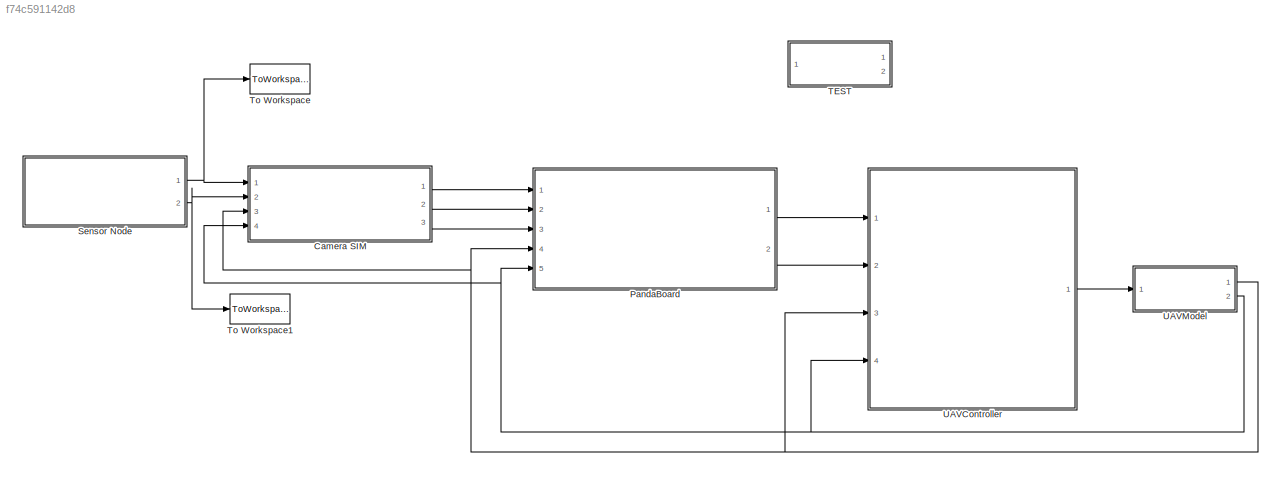
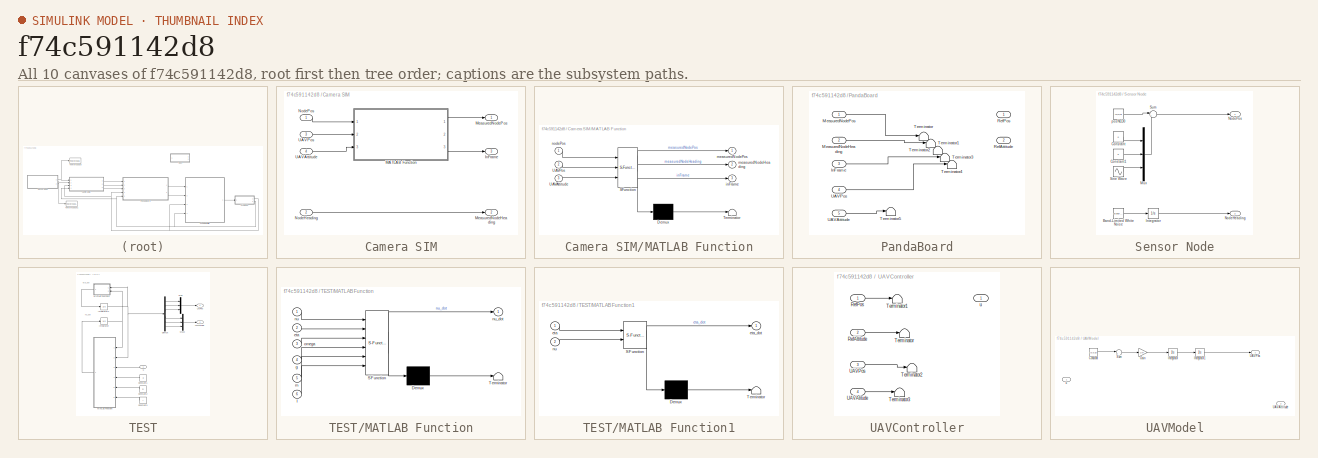
[diagram: thumbnail index - all 10 canvases of the model, root first then tree order]
MODEL slx_f74c591142d8
KIND model
BLOCK [SubSystem] Camera SIM
  FunctionWithSeparateData = off
  MaskHideContents = off
  MinAlgLoopOccurrences = off
  Opaque = off
  Ports = [4, 3]
  PropExecContextOutsideSubsystem = off
  RTWSystemCode = Auto
  RequestExecContextInheritance = off
BLOCK [Outport] Camera SIM/InFrame
  IconDisplay = Port number
  Port = 3
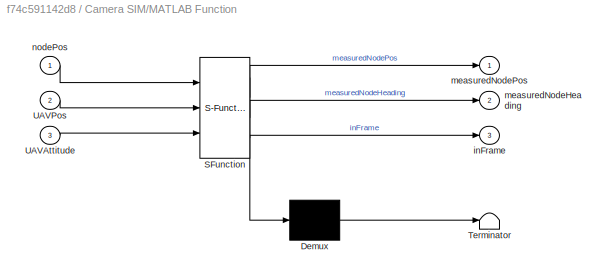
BLOCK [SubSystem] Camera SIM/MATLAB Function
  ErrorFcn = Stateflow.Translate.translate
  FunctionWithSeparateData = off
  MaskHideContents = off
  MinAlgLoopOccurrences = off
  Opaque = off
  PermitHierarchicalResolution = ExplicitOnly
  Ports = [3, 3]
  PropExecContextOutsideSubsystem = off
  RTWSystemCode = Auto
  RequestExecContextInheritance = off
  SFBlockType = MATLAB Function
  TreatAsAtomicUnit = on
BLOCK [Demux] Camera SIM/MATLAB Function/ Demux 
  Outputs = 1
  Ports = [1, 1]
BLOCK [S-Function] Camera SIM/MATLAB Function/ SFunction 
  EnableBusSupport = on
  FunctionName = sf_sfun
  PortCounts = [3 4]
  Ports = [3, 4]
  Tag = Stateflow S-Function fullSys 1
BLOCK [Terminator] Camera SIM/MATLAB Function/ Terminator 
BLOCK [Inport] Camera SIM/MATLAB Function/UAVAttitude
  IconDisplay = Port number
  Port = 3
BLOCK [Inport] Camera SIM/MATLAB Function/UAVPos
  IconDisplay = Port number
  Port = 2
BLOCK [Outport] Camera SIM/MATLAB Function/inFrame
  IconDisplay = Port number
  Port = 3
BLOCK [Outport] Camera SIM/MATLAB Function/measuredNodeHeading
  IconDisplay = Port number
  Port = 2
BLOCK [Outport] Camera SIM/MATLAB Function/measuredNodePos
  IconDisplay = Port number
BLOCK [Inport] Camera SIM/MATLAB Function/nodePos
  IconDisplay = Port number
BLOCK [Outport] Camera SIM/MeasuredNodeHeading
  IconDisplay = Port number
  Port = 2
BLOCK [Outport] Camera SIM/MeasuredNodePos
  IconDisplay = Port number
BLOCK [Inport] Camera SIM/NodeHeading
  IconDisplay = Port number
  Port = 2
BLOCK [Inport] Camera SIM/NodePos
  IconDisplay = Port number
BLOCK [Inport] Camera SIM/UAVAttitude
  IconDisplay = Port number
  Port = 4
BLOCK [Inport] Camera SIM/UAVPos
  IconDisplay = Port number
  Port = 3
BLOCK [SubSystem] PandaBoard
  FunctionWithSeparateData = off
  MaskHideContents = off
  MinAlgLoopOccurrences = off
  Opaque = off
  Ports = [5, 2]
  PropExecContextOutsideSubsystem = off
  RTWSystemCode = Auto
  RequestExecContextInheritance = off
BLOCK [Inport] PandaBoard/InFrame
  IconDisplay = Port number
  Port = 3
BLOCK [Inport] PandaBoard/MeasuredNodeHeading
  IconDisplay = Port number
  Port = 2
BLOCK [Inport] PandaBoard/MeasuredNodePos
  IconDisplay = Port number
BLOCK [Outport] PandaBoard/RefAttitude
  IconDisplay = Port number
  Port = 2
BLOCK [Outport] PandaBoard/RefPos
  IconDisplay = Port number
BLOCK [Terminator] PandaBoard/Terminator
BLOCK [Terminator] PandaBoard/Terminator1
BLOCK [Terminator] PandaBoard/Terminator2
BLOCK [Terminator] PandaBoard/Terminator3
BLOCK [Terminator] PandaBoard/Terminator4
BLOCK [Terminator] PandaBoard/Terminator5
BLOCK [Inport] PandaBoard/UAVAttitude
  IconDisplay = Port number
  Port = 5
BLOCK [Inport] PandaBoard/UAVPos
  IconDisplay = Port number
  Port = 4
BLOCK [SubSystem] Sensor Node
  FunctionWithSeparateData = off
  MaskHideContents = off
  MinAlgLoopOccurrences = off
  Opaque = off
  Ports = [0, 2]
  PropExecContextOutsideSubsystem = off
  RTWSystemCode = Auto
  RequestExecContextInheritance = off
BLOCK [Reference] Sensor Node/Band-Limited White Noise  REF=simulink/Sources/Band-Limited
White Noise
  Cov = [0.1]
  Ports = [0, 1]
  SourceBlock = simulink/Sources/Band-Limited\nWhite Noise
  SourceType = Band-Limited White Noise.
  Ts = 0.1
  VectorParams1D = on
  seed = [23341]
BLOCK [Constant] Sensor Node/Constant
  Value = 0
BLOCK [Constant] Sensor Node/Constant1
  Value = 0
BLOCK [Integrator] Sensor Node/Integrator
  Ports = [1, 1]
BLOCK [Mux] Sensor Node/Mux
  DisplayOption = bar
  Inputs = 3
  Ports = [3, 1]
BLOCK [Outport] Sensor Node/NodeHeading
  IconDisplay = Port number
  Port = 2
BLOCK [Outport] Sensor Node/NodePos
  IconDisplay = Port number
BLOCK [Sin] Sensor Node/Sine Wave
  Ports = [0, 1]
  SampleTime = 0
BLOCK [Sum] Sensor Node/Sum
  IconShape = round
  InputSameDT = off
  Inputs = |++
  OutDataTypeStr = Inherit: Inherit via internal rule
  Ports = [2, 1]
  SaturateOnIntegerOverflow = off
BLOCK [Constant] Sensor Node/posNED0
  Value = [0;0;0]
BLOCK [SubSystem] TEST
  FunctionWithSeparateData = off
  MaskHideContents = off
  MinAlgLoopOccurrences = off
  Opaque = off
  Ports = [1, 2]
  PropExecContextOutsideSubsystem = off
  RTWSystemCode = Auto
  RequestExecContextInheritance = off
BLOCK [Constant] TEST/Constant1
  Value = g
BLOCK [Constant] TEST/Constant2
  Value = m
BLOCK [Constant] TEST/Constant3
  Value = I
BLOCK [Demux] TEST/Demux
  DisplayOption = bar
  Outputs = 6
  Ports = [1, 6]
BLOCK [Integrator] TEST/Integrator
  Ports = [1, 1]
BLOCK [Integrator] TEST/Integrator1
  Ports = [1, 1]
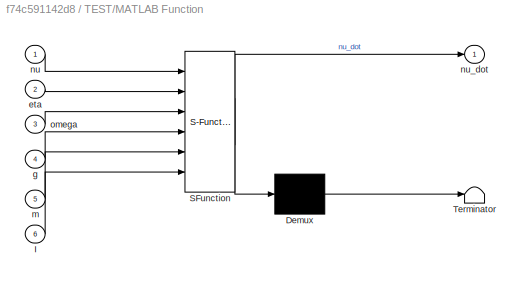
BLOCK [SubSystem] TEST/MATLAB Function
  ErrorFcn = Stateflow.Translate.translate
  FunctionWithSeparateData = off
  MaskHideContents = off
  MinAlgLoopOccurrences = off
  Opaque = off
  PermitHierarchicalResolution = ExplicitOnly
  Ports = [6, 1]
  PropExecContextOutsideSubsystem = off
  RTWSystemCode = Auto
  RequestExecContextInheritance = off
  SFBlockType = MATLAB Function
  TreatAsAtomicUnit = on
BLOCK [Demux] TEST/MATLAB Function/ Demux 
  Outputs = 1
  Ports = [1, 1]
BLOCK [S-Function] TEST/MATLAB Function/ SFunction 
  EnableBusSupport = on
  FunctionName = sf_sfun
  PortCounts = [6 2]
  Ports = [6, 2]
  Tag = Stateflow S-Function fullSys 2
BLOCK [Terminator] TEST/MATLAB Function/ Terminator 
BLOCK [Inport] TEST/MATLAB Function/I
  IconDisplay = Port number
  Port = 6
BLOCK [Inport] TEST/MATLAB Function/eta
  IconDisplay = Port number
  Port = 2
BLOCK [Inport] TEST/MATLAB Function/g
  IconDisplay = Port number
  Port = 4
BLOCK [Inport] TEST/MATLAB Function/m
  IconDisplay = Port number
  Port = 5
BLOCK [Inport] TEST/MATLAB Function/nu
  IconDisplay = Port number
BLOCK [Outport] TEST/MATLAB Function/nu_dot
  IconDisplay = Port number
BLOCK [Inport] TEST/MATLAB Function/omega
  IconDisplay = Port number
  Port = 3
BLOCK [SubSystem] TEST/MATLAB Function1
  ErrorFcn = Stateflow.Translate.translate
  FunctionWithSeparateData = off
  MaskHideContents = off
  MinAlgLoopOccurrences = off
  Opaque = off
  PermitHierarchicalResolution = ExplicitOnly
  Ports = [2, 1]
  PropExecContextOutsideSubsystem = off
  RTWSystemCode = Auto
  RequestExecContextInheritance = off
  SFBlockType = MATLAB Function
  TreatAsAtomicUnit = on
BLOCK [Demux] TEST/MATLAB Function1/ Demux 
  Outputs = 1
  Ports = [1, 1]
BLOCK [S-Function] TEST/MATLAB Function1/ SFunction 
  EnableBusSupport = on
  FunctionName = sf_sfun
  PortCounts = [2 2]
  Ports = [2, 2]
  Tag = Stateflow S-Function fullSys 3
BLOCK [Terminator] TEST/MATLAB Function1/ Terminator 
BLOCK [Inport] TEST/MATLAB Function1/eta
  IconDisplay = Port number
BLOCK [Outport] TEST/MATLAB Function1/eta_dot
  IconDisplay = Port number
BLOCK [Inport] TEST/MATLAB Function1/nu
  IconDisplay = Port number
  Port = 2
BLOCK [Mux] TEST/Mux
  DisplayOption = bar
  Inputs = 3
  Ports = [3, 1]
BLOCK [Mux] TEST/Mux2
  DisplayOption = bar
  Inputs = 3
  Ports = [3, 1]
BLOCK [Outport] TEST/UAVAtitude
  IconDisplay = Port number
  Port = 2
BLOCK [Outport] TEST/UAVPos
  IconDisplay = Port number
BLOCK [Inport] TEST/u
  IconDisplay = Port number
BLOCK [ToWorkspace] To Workspace
  MaxDataPoints = inf
  Ports = [1]
  SampleTime = -1
  SaveFormat = Timeseries
  VariableName = NodePos
BLOCK [ToWorkspace] To Workspace1
  MaxDataPoints = inf
  Ports = [1]
  SampleTime = -1
  SaveFormat = Timeseries
  VariableName = NodeHeading
BLOCK [SubSystem] UAVController
  FunctionWithSeparateData = off
  MaskHideContents = off
  MinAlgLoopOccurrences = off
  Opaque = off
  Ports = [4, 1]
  PropExecContextOutsideSubsystem = off
  RTWSystemCode = Auto
  RequestExecContextInheritance = off
BLOCK [Inport] UAVController/RefAttitude
  IconDisplay = Port number
  Port = 2
BLOCK [Inport] UAVController/RefPos
  IconDisplay = Port number
BLOCK [Terminator] UAVController/Terminator
BLOCK [Terminator] UAVController/Terminator1
BLOCK [Terminator] UAVController/Terminator2
BLOCK [Terminator] UAVController/Terminator3
BLOCK [Inport] UAVController/UAVAtitude
  IconDisplay = Port number
  Port = 4
BLOCK [Inport] UAVController/UAVPos
  IconDisplay = Port number
  Port = 3
BLOCK [Outport] UAVController/u
  IconDisplay = Port number
BLOCK [SubSystem] UAVModel
  FunctionWithSeparateData = off
  MaskHideContents = off
  MinAlgLoopOccurrences = off
  Opaque = off
  Ports = [1, 2]
  PropExecContextOutsideSubsystem = off
  RTWSystemCode = Auto
  RequestExecContextInheritance = off
BLOCK [Constant] UAVModel/Constant
  Value = [0;0;g]
BLOCK [Gain] UAVModel/Gain
  Gain = 1/m
  OutDataTypeStr = Inherit: Inherit via internal rule
  ParamDataTypeStr = Inherit: Inherit via internal rule
  SaturateOnIntegerOverflow = off
BLOCK [Integrator] UAVModel/Integrator
  Ports = [1, 1]
BLOCK [Integrator] UAVModel/Integrator1
  Ports = [1, 1]
BLOCK [Sum] UAVModel/Sum
  IconShape = round
  InputSameDT = off
  Inputs = |++
  OutDataTypeStr = Inherit: Inherit via internal rule
  Ports = [2, 1]
  SaturateOnIntegerOverflow = off
BLOCK [Outport] UAVModel/UAVAttitude
  IconDisplay = Port number
  Port = 2
BLOCK [Outport] UAVModel/UAVPos
  IconDisplay = Port number
BLOCK [Inport] UAVModel/u
  IconDisplay = Port number
ANNOTATION TEST: eta_dot
ANNOTATION TEST: nu_dot
LINE Camera SIM/MATLAB Function:1 -> Camera SIM/MeasuredNodePos:1
LINE Camera SIM/MATLAB Function:3 -> Camera SIM/InFrame:1
LINE Camera SIM/NodeHeading:1 -> Camera SIM/MeasuredNodeHeading:1
LINE Camera SIM/NodePos:1 -> Camera SIM/MATLAB Function:1
LINE Camera SIM/UAVAttitude:1 -> Camera SIM/MATLAB Function:3
LINE Camera SIM/UAVPos:1 -> Camera SIM/MATLAB Function:2
LINE Camera SIM:1 -> PandaBoard:1
LINE Camera SIM:2 -> PandaBoard:2
LINE Camera SIM:3 -> PandaBoard:3
LINE PandaBoard/InFrame:1 -> PandaBoard/Terminator3:1
LINE PandaBoard/MeasuredNodeHeading:1 -> PandaBoard/Terminator1:1
LINE PandaBoard/MeasuredNodePos:1 -> PandaBoard/Terminator:1
LINE PandaBoard/UAVAttitude:1 -> PandaBoard/Terminator5:1
LINE PandaBoard/UAVPos:1 -> PandaBoard/Terminator4:1
LINE PandaBoard:1 -> UAVController:1
LINE PandaBoard:2 -> UAVController:2
LINE Sensor Node/Band-Limited White Noise:1 -> Sensor Node/Integrator:1
LINE Sensor Node/Constant1:1 -> Sensor Node/Mux:2
LINE Sensor Node/Constant:1 -> Sensor Node/Mux:1
LINE Sensor Node/Integrator:1 -> Sensor Node/NodeHeading:1
LINE Sensor Node/Mux:1 -> Sensor Node/Sum:2
LINE Sensor Node/Sine Wave:1 -> Sensor Node/Mux:3
LINE Sensor Node/Sum:1 -> Sensor Node/NodePos:1
LINE Sensor Node/posNED0:1 -> Sensor Node/Sum:1
NET Sensor Node:1 -> Camera SIM:1, To Workspace:1
NET Sensor Node:2 -> Camera SIM:2, To Workspace1:1
LINE TEST/Constant1:1 -> TEST/MATLAB Function:4
LINE TEST/Constant2:1 -> TEST/MATLAB Function:5
LINE TEST/Constant3:1 -> TEST/MATLAB Function:6
LINE TEST/Demux:1 -> TEST/Mux:1
LINE TEST/Demux:2 -> TEST/Mux:2
LINE TEST/Demux:3 -> TEST/Mux:3
LINE TEST/Demux:4 -> TEST/Mux2:1
LINE TEST/Demux:5 -> TEST/Mux2:2
LINE TEST/Demux:6 -> TEST/Mux2:3
NET TEST/Integrator1:1 -> TEST/Demux:1, TEST/MATLAB Function1:1, TEST/MATLAB Function:2
NET TEST/Integrator:1 -> TEST/MATLAB Function1:2, TEST/MATLAB Function:1
LINE TEST/MATLAB Function1:1 -> TEST/Integrator1:1
LINE TEST/MATLAB Function:1 -> TEST/Integrator:1
LINE TEST/Mux2:1 -> TEST/UAVAtitude:1
LINE TEST/Mux:1 -> TEST/UAVPos:1
LINE TEST/u:1 -> TEST/MATLAB Function:3
LINE UAVController/RefAttitude:1 -> UAVController/Terminator:1
LINE UAVController/RefPos:1 -> UAVController/Terminator1:1
LINE UAVController/UAVAtitude:1 -> UAVController/Terminator3:1
LINE UAVController/UAVPos:1 -> UAVController/Terminator2:1
LINE UAVController:1 -> UAVModel:1
LINE UAVModel/Constant:1 -> UAVModel/Sum:1
LINE UAVModel/Gain:1 -> UAVModel/Integrator:1
LINE UAVModel/Integrator1:1 -> UAVModel/UAVPos:1
LINE UAVModel/Integrator:1 -> UAVModel/Integrator1:1
LINE UAVModel/Sum:1 -> UAVModel/Gain:1
NET UAVModel:1 -> Camera SIM:3, PandaBoard:4, UAVController:3
NET UAVModel:2 -> Camera SIM:4, PandaBoard:5, UAVController:4
note: NET lines group one-source signal fan-out (src -> all destinations, sorted); 1:1 wires keep LINE
